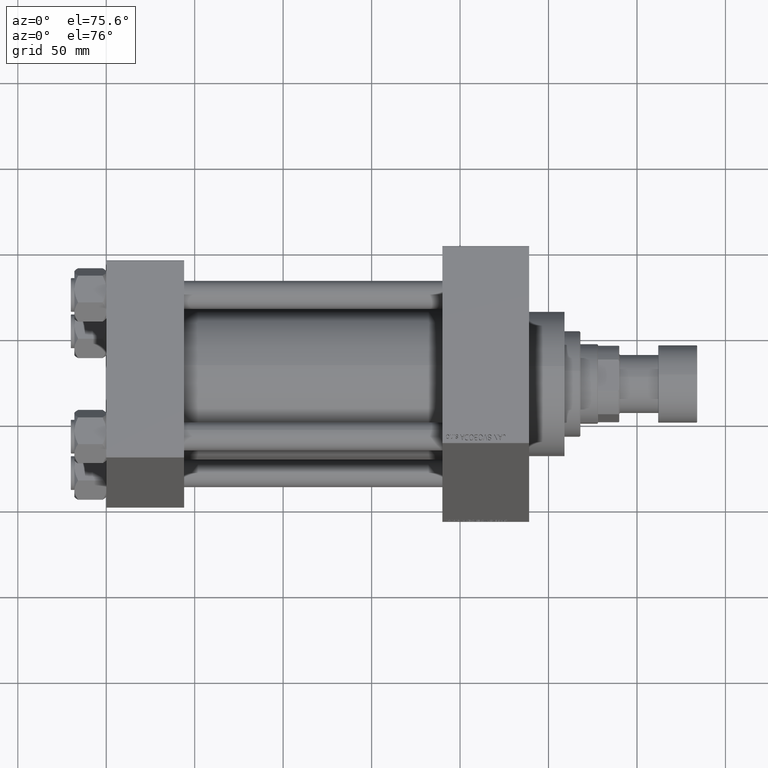
[diagram: clean part render]
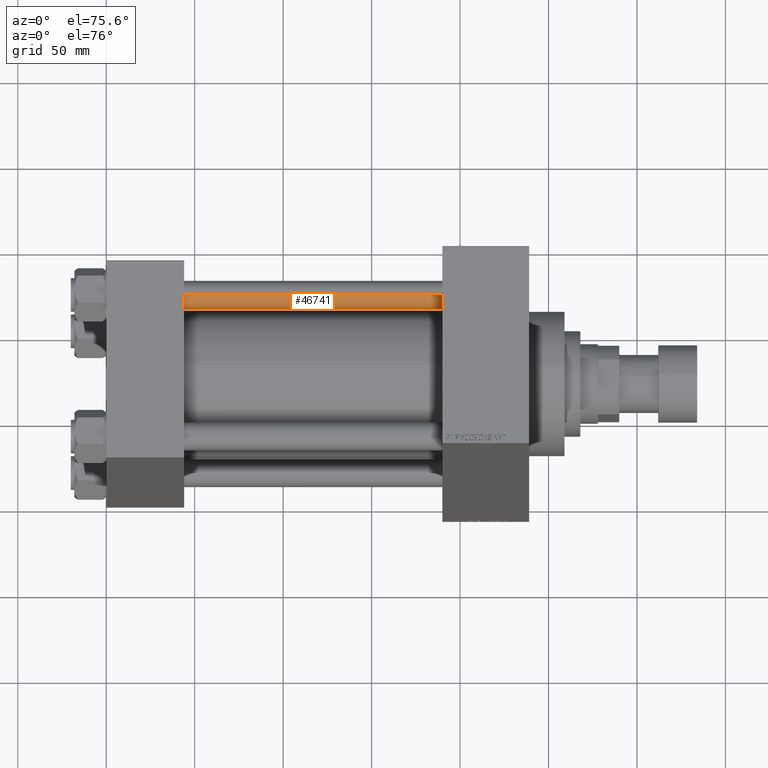
[diagram: same view with one face highlighted and labeled with its STEP entity id]
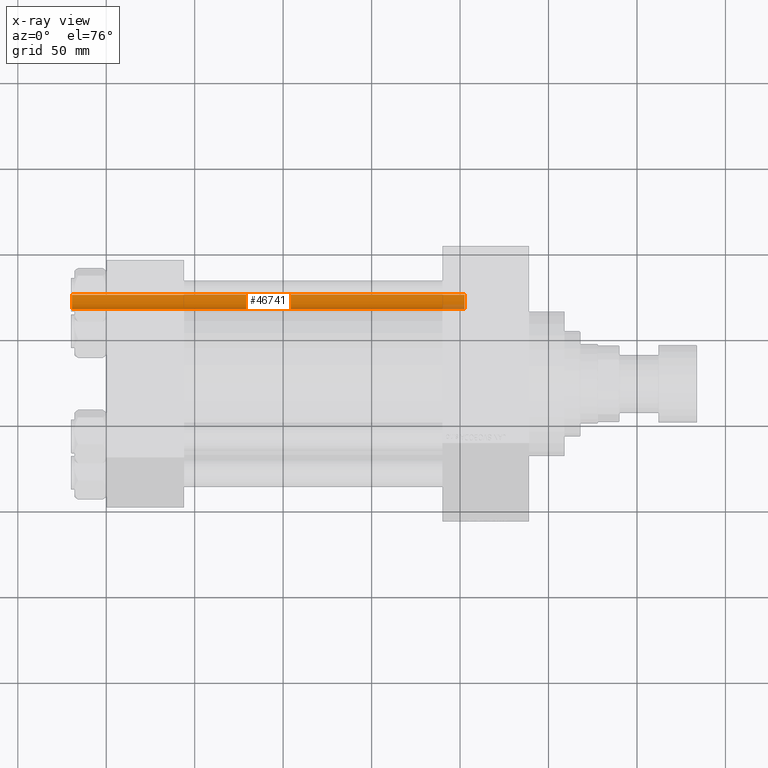
[diagram: x-ray of the same camera — body ghosted, the highlighted face saturated]
A machine part, auxiliary view. The second image highlights one B-rep face of the part: STEP entity #46741.
The next image is the same camera in x-ray: the body ghosted, the highlighted face saturated — about 2% of this face is hidden behind the body in this view.
In plain terms, the highlighted cylindrical surface (edge-blend (fillet) strip) has radius 8 mm, axis along (-1, -0, 0).
Its self-contained STEP definition (entity closure, byte-faithful):
#577 = VERTEX_POINT ( 'NONE', #30292 ) ;
#1586 = VERTEX_POINT ( 'NONE', #8335 ) ;
#2604 = CARTESIAN_POINT ( 'NONE',  ( -8.000000000000000000, 0.000000000000000000, 223.0000000000000000 ) ) ;
#3030 = CARTESIAN_POINT ( 'NONE',  ( 8.000000000000000000, 9.797174393178823685E-16, 0.5000000000001669775 ) ) ;
#3152 = ORIENTED_EDGE ( 'NONE', *, *, #26760, .T. ) ;
#3333 = CIRCLE ( 'NONE', #45467, 8.000000000000000000 ) ;
#3534 = VECTOR ( 'NONE', #46155, 1000.000000000000000 ) ;
#4824 = CYLINDRICAL_SURFACE ( 'NONE', #9168, 8.000000000000000000 ) ;
#5501 = VECTOR ( 'NONE', #9694, 1000.000000000000000 ) ;
#6446 = DIRECTION ( 'NONE',  ( -1.000000000000000000, 0.000000000000000000, 0.000000000000000000 ) ) ;
#7701 = EDGE_LOOP ( 'NONE', ( #35301, #21141, #40973, #3152 ) ) ;
#8335 = CARTESIAN_POINT ( 'NONE',  ( -8.000000000000000000, 0.000000000000000000, 222.5000000000001137 ) ) ;
#9168 = AXIS2_PLACEMENT_3D ( 'NONE', #12139, #24749, #6446 ) ;
#9694 = DIRECTION ( 'NONE',  ( -0.000000000000000000, -0.000000000000000000, -1.000000000000000000 ) ) ;
#12139 = CARTESIAN_POINT ( 'NONE',  ( 0.000000000000000000, 0.000000000000000000, 223.0000000000000000 ) ) ;
#13119 = LINE ( 'NONE', #2604, #5501 ) ;
#14304 = DIRECTION ( 'NONE',  ( 0.000000000000000000, 0.000000000000000000, -1.000000000000000000 ) ) ;
#16915 = CIRCLE ( 'NONE', #37980, 8.000000000000000000 ) ;
#18067 = EDGE_CURVE ( 'NONE', #1586, #577, #13119, .T. ) ;
#18446 = DIRECTION ( 'NONE',  ( 1.000000000000000000, 0.000000000000000000, 0.000000000000000000 ) ) ;
#21141 = ORIENTED_EDGE ( 'NONE', *, *, #45586, .T. ) ;
#24749 = DIRECTION ( 'NONE',  ( -0.000000000000000000, -0.000000000000000000, -1.000000000000000000 ) ) ;
#25002 = DIRECTION ( 'NONE',  ( 1.000000000000000000, 0.000000000000000000, 0.000000000000000000 ) ) ;
#25282 = CARTESIAN_POINT ( 'NONE',  ( 0.000000000000000000, 0.000000000000000000, 222.5000000000001137 ) ) ;
#26456 = VERTEX_POINT ( 'NONE', #39240 ) ;
#26760 = EDGE_CURVE ( 'NONE', #577, #34825, #3333, .T. ) ;
#26835 = CARTESIAN_POINT ( 'NONE',  ( 8.000000000000000000, 9.797174393178823685E-16, 223.0000000000000000 ) ) ;
#27931 = DIRECTION ( 'NONE',  ( -0.000000000000000000, -0.000000000000000000, 1.000000000000000000 ) ) ;
#30292 = CARTESIAN_POINT ( 'NONE',  ( -8.000000000000000000, 0.000000000000000000, 0.5000000000001669775 ) ) ;
#31224 = LINE ( 'NONE', #26835, #3534 ) ;
#31595 = CARTESIAN_POINT ( 'NONE',  ( 0.000000000000000000, 0.000000000000000000, 0.5000000000001669775 ) ) ;
#31827 = FACE_OUTER_BOUND ( 'NONE', #7701, .T. ) ;
#34825 = VERTEX_POINT ( 'NONE', #3030 ) ;
#35301 = ORIENTED_EDGE ( 'NONE', *, *, #36361, .F. ) ;
#36361 = EDGE_CURVE ( 'NONE', #26456, #34825, #31224, .T. ) ;
#37980 = AXIS2_PLACEMENT_3D ( 'NONE', #25282, #14304, #18446 ) ;
#39240 = CARTESIAN_POINT ( 'NONE',  ( 8.000000000000000000, 9.797174393178823685E-16, 222.5000000000001137 ) ) ;
#40973 = ORIENTED_EDGE ( 'NONE', *, *, #18067, .T. ) ;
#45467 = AXIS2_PLACEMENT_3D ( 'NONE', #31595, #27931, #25002 ) ;
#45586 = EDGE_CURVE ( 'NONE', #26456, #1586, #16915, .T. ) ;
#46155 = DIRECTION ( 'NONE',  ( -0.000000000000000000, -0.000000000000000000, -1.000000000000000000 ) ) ;
#46741 = ADVANCED_FACE ( 'NONE', ( #31827 ), #4824, .T. ) ;